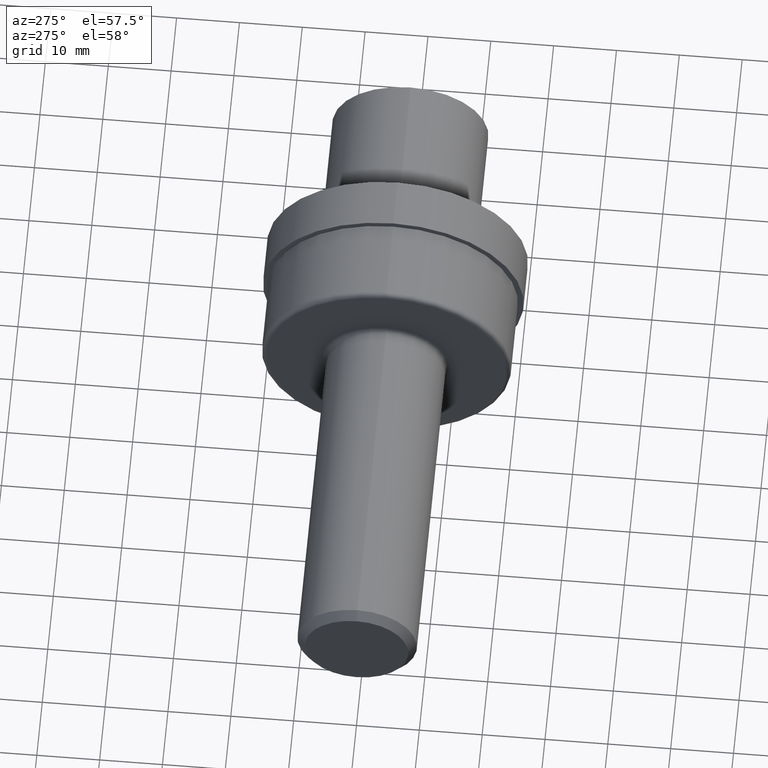
[diagram: clean part render]
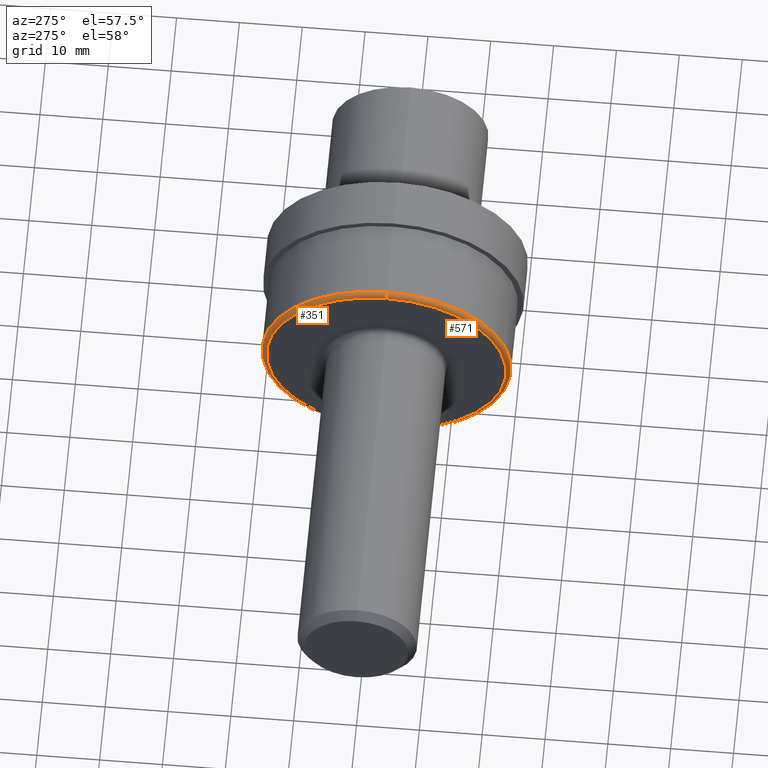
[diagram: same view with one multi-face feature highlighted, each face labeled with its STEP entity id]
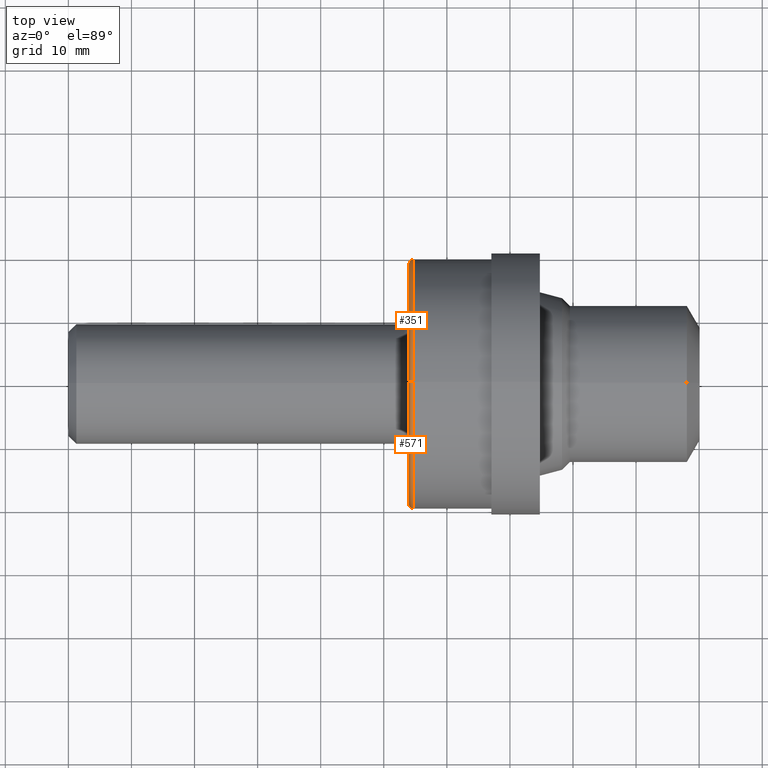
[diagram: same view with one multi-face feature highlighted, each face labeled with its STEP entity id]
A machine part, auxiliary view. The highlighted faces form ONE feature: a constant-radius fillet chain: 2 tangent blend faces with common blend radius 0.762 mm. The faces share edges in the B-rep.
A second angle (top view) of the same feature is appended — it is thin or edge-on in the first view.
Their STEP definitions:
[1] entity #351 (Torus):
#16 = EDGE_CURVE ( 'NONE', #63, #653, #430, .T. ) ;
#40 = CARTESIAN_POINT ( 'NONE',  ( 2.154999999999999805, 0.0000000000000000000, 0.7810000000000001386 ) ) ;
#56 = CARTESIAN_POINT ( 'NONE',  ( 2.154999999999999805, 9.564491501340829556E-17, -0.7810000000000001386 ) ) ;
#63 = VERTEX_POINT ( 'NONE', #40 ) ;
#68 = CIRCLE ( 'NONE', #559, 0.7510000000000001119 ) ;
#89 = EDGE_CURVE ( 'NONE', #653, #579, #529, .T. ) ;
#98 = CARTESIAN_POINT ( 'NONE',  ( 2.125000000000000000, 0.0000000000000000000, 0.7510000000000001119 ) ) ;
#116 = AXIS2_PLACEMENT_3D ( 'NONE', #341, #525, #676 ) ;
#137 = DIRECTION ( 'NONE',  ( -0.0000000000000000000, 1.000000000000000000, 1.224646799147353207E-16 ) ) ;
#169 = CARTESIAN_POINT ( 'NONE',  ( 2.125000000000000000, 9.380794481468725749E-17, -0.7510000000000001119 ) ) ;
#189 = AXIS2_PLACEMENT_3D ( 'NONE', #666, #288, #607 ) ;
#207 = CARTESIAN_POINT ( 'NONE',  ( 2.154999999999999805, 0.0000000000000000000, 0.7510000000000001119 ) ) ;
#238 = VERTEX_POINT ( 'NONE', #98 ) ;
#242 = ORIENTED_EDGE ( 'NONE', *, *, #89, .T. ) ;
#243 = ORIENTED_EDGE ( 'NONE', *, *, #655, .F. ) ;
#285 = EDGE_CURVE ( 'NONE', #63, #238, #432, .T. ) ;
#288 = DIRECTION ( 'NONE',  ( -1.000000000000000000, -0.0000000000000000000, -0.0000000000000000000 ) ) ;
#296 = ORIENTED_EDGE ( 'NONE', *, *, #16, .T. ) ;
#341 = CARTESIAN_POINT ( 'NONE',  ( 2.154999999999999805, 0.0000000000000000000, 0.0000000000000000000 ) ) ;
#351 = ADVANCED_FACE ( 'NONE', ( #386 ), #510, .T. ) ;
#386 = FACE_OUTER_BOUND ( 'NONE', #668, .T. ) ;
#420 = AXIS2_PLACEMENT_3D ( 'NONE', #449, #137, #685 ) ;
#430 = CIRCLE ( 'NONE', #189, 0.7810000000000001386 ) ;
#432 = CIRCLE ( 'NONE', #684, 0.02999999999999995379 ) ;
#449 = CARTESIAN_POINT ( 'NONE',  ( 2.154999999999999805, 9.197097461596624408E-17, -0.7510000000000001119 ) ) ;
#510 = TOROIDAL_SURFACE ( 'NONE', #116, 0.7510000000000001119, 0.02999999999999995379 ) ;
#525 = DIRECTION ( 'NONE',  ( -1.000000000000000000, -0.0000000000000000000, -0.0000000000000000000 ) ) ;
#529 = CIRCLE ( 'NONE', #420, 0.02999999999999995379 ) ;
#535 = ORIENTED_EDGE ( 'NONE', *, *, #285, .F. ) ;
#559 = AXIS2_PLACEMENT_3D ( 'NONE', #612, #611, #586 ) ;
#575 = DIRECTION ( 'NONE',  ( 0.0000000000000000000, 0.0000000000000000000, -1.000000000000000000 ) ) ;
#579 = VERTEX_POINT ( 'NONE', #169 ) ;
#586 = DIRECTION ( 'NONE',  ( 0.0000000000000000000, 0.0000000000000000000, 1.000000000000000000 ) ) ;
#607 = DIRECTION ( 'NONE',  ( 0.0000000000000000000, 0.0000000000000000000, 1.000000000000000000 ) ) ;
#611 = DIRECTION ( 'NONE',  ( -1.000000000000000000, -0.0000000000000000000, -0.0000000000000000000 ) ) ;
#612 = CARTESIAN_POINT ( 'NONE',  ( 2.125000000000000000, 0.0000000000000000000, 0.0000000000000000000 ) ) ;
#633 = DIRECTION ( 'NONE',  ( 0.0000000000000000000, -1.000000000000000000, 0.0000000000000000000 ) ) ;
#653 = VERTEX_POINT ( 'NONE', #56 ) ;
#655 = EDGE_CURVE ( 'NONE', #238, #579, #68, .T. ) ;
#666 = CARTESIAN_POINT ( 'NONE',  ( 2.154999999999999805, 0.0000000000000000000, 0.0000000000000000000 ) ) ;
#668 = EDGE_LOOP ( 'NONE', ( #296, #242, #243, #535 ) ) ;
#676 = DIRECTION ( 'NONE',  ( 0.0000000000000000000, 0.0000000000000000000, 1.000000000000000000 ) ) ;
#684 = AXIS2_PLACEMENT_3D ( 'NONE', #207, #633, #575 ) ;
#685 = DIRECTION ( 'NONE',  ( 0.0000000000000000000, -1.224646799147354933E-16, 1.000000000000000000 ) ) ;
[2] entity #571 (Torus):
#24 = CARTESIAN_POINT ( 'NONE',  ( 2.154999999999999805, 0.0000000000000000000, 0.0000000000000000000 ) ) ;
#34 = FACE_OUTER_BOUND ( 'NONE', #398, .T. ) ;
#38 = DIRECTION ( 'NONE',  ( 0.0000000000000000000, 0.0000000000000000000, 1.000000000000000000 ) ) ;
#40 = CARTESIAN_POINT ( 'NONE',  ( 2.154999999999999805, 0.0000000000000000000, 0.7810000000000001386 ) ) ;
#41 = ORIENTED_EDGE ( 'NONE', *, *, #89, .F. ) ;
#56 = CARTESIAN_POINT ( 'NONE',  ( 2.154999999999999805, 9.564491501340829556E-17, -0.7810000000000001386 ) ) ;
#61 = DIRECTION ( 'NONE',  ( -1.000000000000000000, -0.0000000000000000000, -0.0000000000000000000 ) ) ;
#63 = VERTEX_POINT ( 'NONE', #40 ) ;
#76 = DIRECTION ( 'NONE',  ( -1.000000000000000000, -0.0000000000000000000, -0.0000000000000000000 ) ) ;
#89 = EDGE_CURVE ( 'NONE', #653, #579, #529, .T. ) ;
#98 = CARTESIAN_POINT ( 'NONE',  ( 2.125000000000000000, 0.0000000000000000000, 0.7510000000000001119 ) ) ;
#137 = DIRECTION ( 'NONE',  ( -0.0000000000000000000, 1.000000000000000000, 1.224646799147353207E-16 ) ) ;
#169 = CARTESIAN_POINT ( 'NONE',  ( 2.125000000000000000, 9.380794481468725749E-17, -0.7510000000000001119 ) ) ;
#171 = CIRCLE ( 'NONE', #372, 0.7810000000000001386 ) ;
#207 = CARTESIAN_POINT ( 'NONE',  ( 2.154999999999999805, 0.0000000000000000000, 0.7510000000000001119 ) ) ;
#208 = ORIENTED_EDGE ( 'NONE', *, *, #285, .T. ) ;
#211 = AXIS2_PLACEMENT_3D ( 'NONE', #620, #248, #614 ) ;
#238 = VERTEX_POINT ( 'NONE', #98 ) ;
#248 = DIRECTION ( 'NONE',  ( -1.000000000000000000, -0.0000000000000000000, -0.0000000000000000000 ) ) ;
#285 = EDGE_CURVE ( 'NONE', #63, #238, #432, .T. ) ;
#292 = EDGE_CURVE ( 'NONE', #653, #63, #171, .T. ) ;
#294 = TOROIDAL_SURFACE ( 'NONE', #394, 0.7510000000000001119, 0.02999999999999995379 ) ;
#323 = EDGE_CURVE ( 'NONE', #579, #238, #680, .T. ) ;
#358 = CARTESIAN_POINT ( 'NONE',  ( 2.154999999999999805, 0.0000000000000000000, 0.0000000000000000000 ) ) ;
#372 = AXIS2_PLACEMENT_3D ( 'NONE', #358, #61, #415 ) ;
#394 = AXIS2_PLACEMENT_3D ( 'NONE', #24, #76, #38 ) ;
#398 = EDGE_LOOP ( 'NONE', ( #41, #686, #208, #554 ) ) ;
#415 = DIRECTION ( 'NONE',  ( 0.0000000000000000000, 0.0000000000000000000, 1.000000000000000000 ) ) ;
#420 = AXIS2_PLACEMENT_3D ( 'NONE', #449, #137, #685 ) ;
#432 = CIRCLE ( 'NONE', #684, 0.02999999999999995379 ) ;
#449 = CARTESIAN_POINT ( 'NONE',  ( 2.154999999999999805, 9.197097461596624408E-17, -0.7510000000000001119 ) ) ;
#529 = CIRCLE ( 'NONE', #420, 0.02999999999999995379 ) ;
#554 = ORIENTED_EDGE ( 'NONE', *, *, #323, .F. ) ;
#571 = ADVANCED_FACE ( 'NONE', ( #34 ), #294, .T. ) ;
#575 = DIRECTION ( 'NONE',  ( 0.0000000000000000000, 0.0000000000000000000, -1.000000000000000000 ) ) ;
#579 = VERTEX_POINT ( 'NONE', #169 ) ;
#614 = DIRECTION ( 'NONE',  ( 0.0000000000000000000, 0.0000000000000000000, 1.000000000000000000 ) ) ;
#620 = CARTESIAN_POINT ( 'NONE',  ( 2.125000000000000000, 0.0000000000000000000, 0.0000000000000000000 ) ) ;
#633 = DIRECTION ( 'NONE',  ( 0.0000000000000000000, -1.000000000000000000, 0.0000000000000000000 ) ) ;
#653 = VERTEX_POINT ( 'NONE', #56 ) ;
#680 = CIRCLE ( 'NONE', #211, 0.7510000000000001119 ) ;
#684 = AXIS2_PLACEMENT_3D ( 'NONE', #207, #633, #575 ) ;
#685 = DIRECTION ( 'NONE',  ( 0.0000000000000000000, -1.224646799147354933E-16, 1.000000000000000000 ) ) ;
#686 = ORIENTED_EDGE ( 'NONE', *, *, #292, .T. ) ;